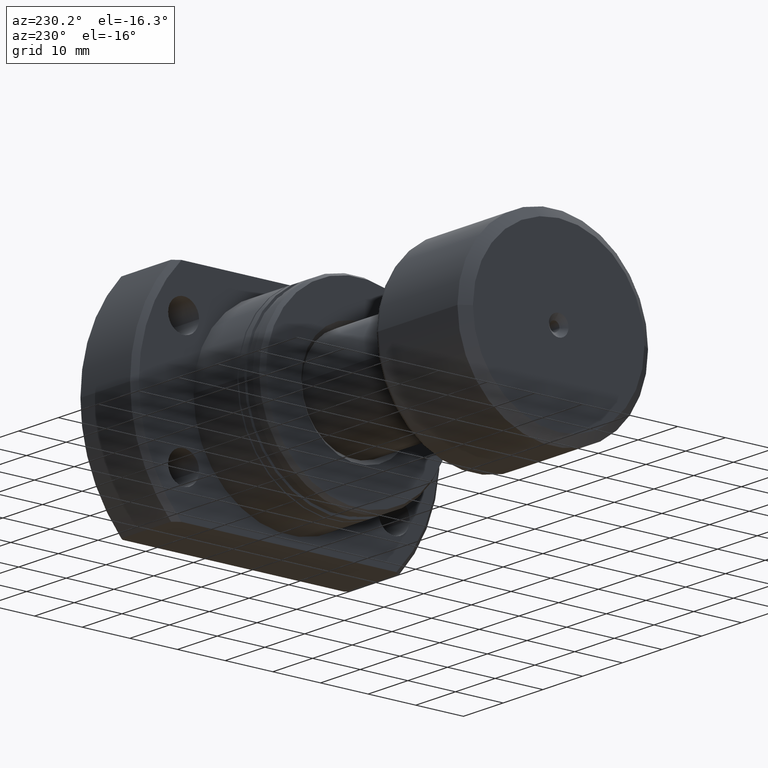
[diagram: clean part render]
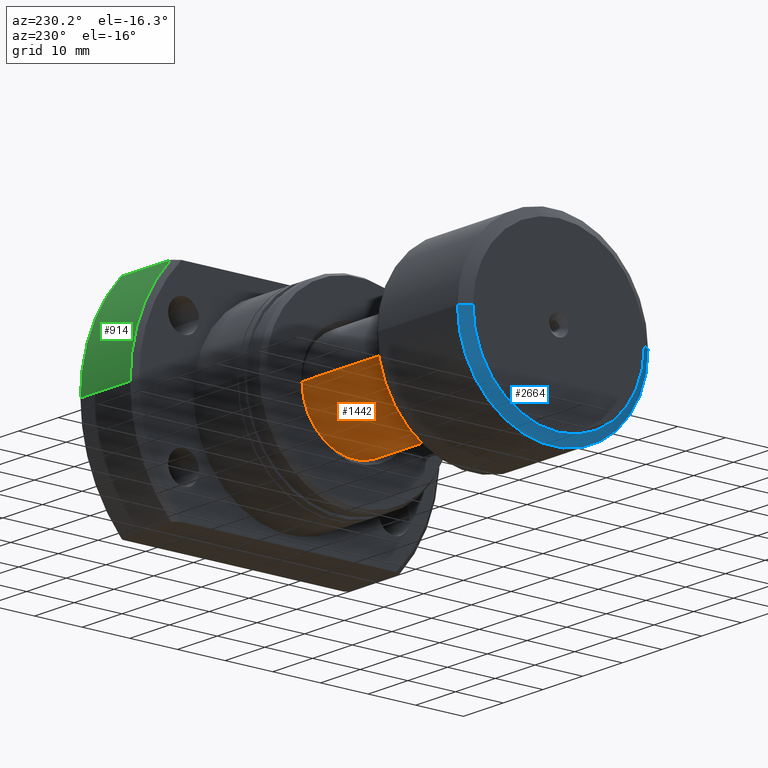
[diagram: same view with three faces highlighted in distinct colors, each labeled with its STEP entity id]
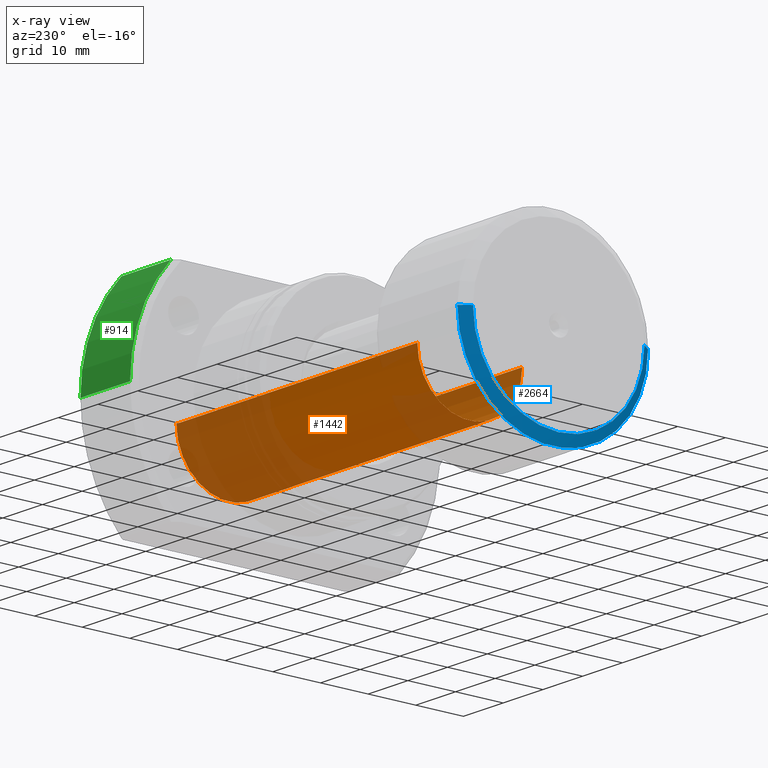
[diagram: x-ray of the same camera — body ghosted, the three highlighted faces saturated]
A machine part, auxiliary view with three faces highlighted in distinct colors.
The next image is the same camera in x-ray (body ghosted, the three faces saturated) — at least one of them is partly hidden behind the body in this view.
Their STEP definitions:

[orange] entity #1442 — the highlighted cylindrical surface (partial cylindrical patch) has radius 11 mm, axis along (-1, -0, -0).
#9 = AXIS2_PLACEMENT_3D ( 'NONE', #52, #2019, #2969 ) ;
#52 = CARTESIAN_POINT ( 'NONE',  ( 83.06675751232377536, 8.884341271647877269E-16, 0.000000000000000000 ) ) ;
#57 = AXIS2_PLACEMENT_3D ( 'NONE', #989, #1975, #2791 ) ;
#156 = ORIENTED_EDGE ( 'NONE', *, *, #3114, .F. ) ;
#464 = DIRECTION ( 'NONE',  ( -1.000000000000000000, -1.069542322069065801E-17, -0.000000000000000000 ) ) ;
#530 = AXIS2_PLACEMENT_3D ( 'NONE', #1832, #1814, #2580 ) ;
#540 = VERTEX_POINT ( 'NONE', #2892 ) ;
#611 = CARTESIAN_POINT ( 'NONE',  ( 22.39999999999999858, 11.00000000000000000, 1.347111479062094124E-15 ) ) ;
#830 = ORIENTED_EDGE ( 'NONE', *, *, #1789, .T. ) ;
#989 = CARTESIAN_POINT ( 'NONE',  ( 22.39999999999999858, 2.395774801434707739E-16, 0.000000000000000000 ) ) ;
#1143 = LINE ( 'NONE', #2129, #3118 ) ;
#1310 = CARTESIAN_POINT ( 'NONE',  ( 22.39999999999999858, -11.00000000000000000, 0.000000000000000000 ) ) ;
#1407 = CIRCLE ( 'NONE', #9, 11.00000000000019007 ) ;
#1442 = ADVANCED_FACE ( 'NONE', ( #3080 ), #1588, .T. ) ;
#1588 = CYLINDRICAL_SURFACE ( 'NONE', #530, 11.00000000000009415 ) ;
#1718 = CIRCLE ( 'NONE', #57, 11.00000000000000000 ) ;
#1789 = EDGE_CURVE ( 'NONE', #3224, #540, #1407, .T. ) ;
#1814 = DIRECTION ( 'NONE',  ( -1.000000000000000000, -1.069542322069065801E-17, -0.000000000000000000 ) ) ;
#1832 = CARTESIAN_POINT ( 'NONE',  ( 0.000000000000000000, 0.000000000000000000, 0.000000000000000000 ) ) ;
#1953 = CARTESIAN_POINT ( 'NONE',  ( -1.176496554275982688E-16, 11.00000000000009415, 1.347111479062100238E-15 ) ) ;
#1975 = DIRECTION ( 'NONE',  ( -1.000000000000000000, -1.069542322069065801E-17, -0.000000000000000000 ) ) ;
#1978 = VERTEX_POINT ( 'NONE', #1310 ) ;
#2006 = CARTESIAN_POINT ( 'NONE',  ( 83.06675751232377536, 11.00000000000019185, 1.347111479062111873E-15 ) ) ;
#2019 = DIRECTION ( 'NONE',  ( -1.000000000000000000, -1.069542322069065801E-17, -0.000000000000000000 ) ) ;
#2064 = LINE ( 'NONE', #1953, #2859 ) ;
#2072 = VERTEX_POINT ( 'NONE', #611 ) ;
#2129 = CARTESIAN_POINT ( 'NONE',  ( 1.176496554275982688E-16, -11.00000000000009415, 0.000000000000000000 ) ) ;
#2158 = EDGE_CURVE ( 'NONE', #540, #1978, #1143, .T. ) ;
#2354 = EDGE_CURVE ( 'NONE', #3224, #2072, #2064, .T. ) ;
#2367 = ORIENTED_EDGE ( 'NONE', *, *, #2354, .F. ) ;
#2580 = DIRECTION ( 'NONE',  ( 1.069542322069065955E-17, -1.000000000000000000, 0.000000000000000000 ) ) ;
#2791 = DIRECTION ( 'NONE',  ( 0.000000000000000000, -1.000000000000000000, 0.000000000000000000 ) ) ;
#2837 = EDGE_LOOP ( 'NONE', ( #2367, #830, #2870, #156 ) ) ;
#2859 = VECTOR ( 'NONE', #3061, 1000.000000000000000 ) ;
#2870 = ORIENTED_EDGE ( 'NONE', *, *, #2158, .T. ) ;
#2892 = CARTESIAN_POINT ( 'NONE',  ( 83.06675751232377536, -11.00000000000018829, 0.000000000000000000 ) ) ;
#2969 = DIRECTION ( 'NONE',  ( 0.000000000000000000, -1.000000000000000000, 0.000000000000000000 ) ) ;
#3061 = DIRECTION ( 'NONE',  ( -1.000000000000000000, -1.069542322069065801E-17, -0.000000000000000000 ) ) ;
#3080 = FACE_OUTER_BOUND ( 'NONE', #2837, .T. ) ;
#3114 = EDGE_CURVE ( 'NONE', #2072, #1978, #1718, .T. ) ;
#3118 = VECTOR ( 'NONE', #464, 1000.000000000000000 ) ;
#3224 = VERTEX_POINT ( 'NONE', #2006 ) ;

[blue] entity #2664 — the highlighted conical surface has half-angle 53.13 deg.
#151 = DIRECTION ( 'NONE',  ( 0.6000000000000005329, -0.7999999999999996003, 9.797174393178821220E-17 ) ) ;
#212 = CONICAL_SURFACE ( 'NONE', #2387, 18.00000000000000355, 0.9272952180016115209 ) ;
#568 = ORIENTED_EDGE ( 'NONE', *, *, #2461, .F. ) ;
#698 = CARTESIAN_POINT ( 'NONE',  ( 2.204364238465235822E-15, -18.00000000000000355, 2.204364238465235822E-15 ) ) ;
#749 = LINE ( 'NONE', #2998, #1609 ) ;
#799 = DIRECTION ( 'NONE',  ( 1.084202172485504434E-17, -1.000000000000000000, 0.000000000000000000 ) ) ;
#866 = ORIENTED_EDGE ( 'NONE', *, *, #2800, .T. ) ;
#882 = EDGE_LOOP ( 'NONE', ( #2844, #568, #3053, #866 ) ) ;
#1050 = VECTOR ( 'NONE', #151, 1000.000000000000000 ) ;
#1059 = VERTEX_POINT ( 'NONE', #2939 ) ;
#1159 = CARTESIAN_POINT ( 'NONE',  ( 2.011846620492804129E-15, 2.151755106128676308E-32, 0.000000000000000000 ) ) ;
#1169 = FACE_OUTER_BOUND ( 'NONE', #882, .T. ) ;
#1224 = CARTESIAN_POINT ( 'NONE',  ( 2.011846620492804129E-15, 2.151755106128676308E-32, 0.000000000000000000 ) ) ;
#1606 = CIRCLE ( 'NONE', #2030, 20.00000000000000000 ) ;
#1609 = VECTOR ( 'NONE', #1731, 1000.000000000000000 ) ;
#1686 = EDGE_CURVE ( 'NONE', #2134, #2988, #1956, .T. ) ;
#1731 = DIRECTION ( 'NONE',  ( 0.6000000000000005329, 0.7999999999999996003, 0.000000000000000000 ) ) ;
#1786 = VERTEX_POINT ( 'NONE', #2773 ) ;
#1856 = EDGE_CURVE ( 'NONE', #1059, #1786, #749, .T. ) ;
#1956 = LINE ( 'NONE', #698, #1050 ) ;
#2029 = CARTESIAN_POINT ( 'NONE',  ( 1.500000000000002442, 1.604313483103601552E-17, 0.000000000000000000 ) ) ;
#2030 = AXIS2_PLACEMENT_3D ( 'NONE', #2029, #3026, #799 ) ;
#2134 = VERTEX_POINT ( 'NONE', #3186 ) ;
#2140 = DIRECTION ( 'NONE',  ( 1.069542322069065647E-17, -1.000000000000000000, 0.000000000000000000 ) ) ;
#2152 = DIRECTION ( 'NONE',  ( 1.000000000000000000, 1.069542322069065801E-17, 0.000000000000000000 ) ) ;
#2285 = AXIS2_PLACEMENT_3D ( 'NONE', #1159, #2890, #2140 ) ;
#2387 = AXIS2_PLACEMENT_3D ( 'NONE', #1224, #2152, #3153 ) ;
#2428 = CARTESIAN_POINT ( 'NONE',  ( 1.500000000000002887, -20.00000000000000000, 2.449293598294706513E-15 ) ) ;
#2461 = EDGE_CURVE ( 'NONE', #1059, #2134, #3011, .T. ) ;
#2664 = ADVANCED_FACE ( 'NONE', ( #1169 ), #212, .T. ) ;
#2773 = CARTESIAN_POINT ( 'NONE',  ( 1.500000000000002442, 20.00000000000000000, 0.000000000000000000 ) ) ;
#2800 = EDGE_CURVE ( 'NONE', #1786, #2988, #1606, .T. ) ;
#2844 = ORIENTED_EDGE ( 'NONE', *, *, #1686, .F. ) ;
#2890 = DIRECTION ( 'NONE',  ( -1.000000000000000000, -1.069542322069065801E-17, -0.000000000000000000 ) ) ;
#2939 = CARTESIAN_POINT ( 'NONE',  ( 1.819329002520372041E-15, 18.00000000000000355, 0.000000000000000000 ) ) ;
#2988 = VERTEX_POINT ( 'NONE', #2428 ) ;
#2998 = CARTESIAN_POINT ( 'NONE',  ( 1.819329002520372041E-15, 18.00000000000000355, 0.000000000000000000 ) ) ;
#3011 = CIRCLE ( 'NONE', #2285, 18.00000000000000355 ) ;
#3026 = DIRECTION ( 'NONE',  ( -1.000000000000000000, -1.069542322069065801E-17, -0.000000000000000000 ) ) ;
#3053 = ORIENTED_EDGE ( 'NONE', *, *, #1856, .T. ) ;
#3153 = DIRECTION ( 'NONE',  ( -1.069542322069065647E-17, 1.000000000000000000, 0.000000000000000000 ) ) ;
#3186 = CARTESIAN_POINT ( 'NONE',  ( 2.204364238465235822E-15, -18.00000000000000355, 2.326828918379971365E-15 ) ) ;

[green] entity #914 — the highlighted cylindrical surface (partial cylindrical patch) has radius 32.5 mm, axis along (1, 0, 0).
#23 = DIRECTION ( 'NONE',  ( 0.000000000000000000, 1.000000000000000000, 0.000000000000000000 ) ) ;
#51 = AXIS2_PLACEMENT_3D ( 'NONE', #1641, #1333, #1401 ) ;
#116 = DIRECTION ( 'NONE',  ( 1.000000000000000000, 2.721437331438560389E-17, -0.000000000000000000 ) ) ;
#185 = CARTESIAN_POINT ( 'NONE',  ( 18.49999999999998934, 23.92174742781163133, 21.99999999999998934 ) ) ;
#796 = EDGE_CURVE ( 'NONE', #2215, #2609, #2013, .T. ) ;
#898 = FACE_OUTER_BOUND ( 'NONE', #2466, .T. ) ;
#914 = ADVANCED_FACE ( 'NONE', ( #898 ), #2835, .T. ) ;
#932 = EDGE_CURVE ( 'NONE', #2968, #941, #2617, .T. ) ;
#941 = VERTEX_POINT ( 'NONE', #1366 ) ;
#1002 = CIRCLE ( 'NONE', #51, 32.49999999999990763 ) ;
#1048 = CARTESIAN_POINT ( 'NONE',  ( -2.498001805406602216E-13, 23.92174742781216423, 21.99999999999998934 ) ) ;
#1057 = CARTESIAN_POINT ( 'NONE',  ( 18.49999999999998934, 5.034659063161333869E-16, 0.000000000000000000 ) ) ;
#1105 = AXIS2_PLACEMENT_3D ( 'NONE', #1057, #2233, #23 ) ;
#1298 = AXIS2_PLACEMENT_3D ( 'NONE', #2141, #116, #3143 ) ;
#1333 = DIRECTION ( 'NONE',  ( 1.000000000000000000, 2.721437331438560389E-17, -0.000000000000000000 ) ) ;
#1366 = CARTESIAN_POINT ( 'NONE',  ( 31.00000000000008171, 32.49999999999990763, 0.000000000000000000 ) ) ;
#1401 = DIRECTION ( 'NONE',  ( 0.000000000000000000, 1.000000000000000000, 0.000000000000000000 ) ) ;
#1409 = EDGE_CURVE ( 'NONE', #941, #2609, #1002, .T. ) ;
#1641 = CARTESIAN_POINT ( 'NONE',  ( 31.00000000000008171, 8.436455727459560039E-16, 0.000000000000000000 ) ) ;
#1711 = VECTOR ( 'NONE', #2880, 1000.000000000000000 ) ;
#1802 = DIRECTION ( 'NONE',  ( 1.000000000000000000, -2.886466111666351885E-14, -0.000000000000000000 ) ) ;
#1816 = EDGE_CURVE ( 'NONE', #2968, #2215, #2714, .T. ) ;
#2013 = LINE ( 'NONE', #1048, #3071 ) ;
#2141 = CARTESIAN_POINT ( 'NONE',  ( 31.50000000000000000, 8.572527594031465301E-16, 0.000000000000000000 ) ) ;
#2162 = ORIENTED_EDGE ( 'NONE', *, *, #932, .F. ) ;
#2203 = CARTESIAN_POINT ( 'NONE',  ( 18.49999999999998934, 32.49999999999990763, 0.000000000000000000 ) ) ;
#2215 = VERTEX_POINT ( 'NONE', #185 ) ;
#2233 = DIRECTION ( 'NONE',  ( 1.000000000000000000, 2.721437331438560389E-17, -0.000000000000000000 ) ) ;
#2466 = EDGE_LOOP ( 'NONE', ( #2162, #2764, #2486, #3052 ) ) ;
#2486 = ORIENTED_EDGE ( 'NONE', *, *, #796, .T. ) ;
#2609 = VERTEX_POINT ( 'NONE', #2975 ) ;
#2617 = LINE ( 'NONE', #2891, #1711 ) ;
#2714 = CIRCLE ( 'NONE', #1105, 32.49999999999990763 ) ;
#2764 = ORIENTED_EDGE ( 'NONE', *, *, #1816, .T. ) ;
#2835 = CYLINDRICAL_SURFACE ( 'NONE', #1298, 32.49999999999990763 ) ;
#2880 = DIRECTION ( 'NONE',  ( 1.000000000000000000, 2.721437331438560389E-17, -0.000000000000000000 ) ) ;
#2891 = CARTESIAN_POINT ( 'NONE',  ( 31.50000000000000000, 32.49999999999990763, 0.000000000000000000 ) ) ;
#2968 = VERTEX_POINT ( 'NONE', #2203 ) ;
#2975 = CARTESIAN_POINT ( 'NONE',  ( 31.00000000000007461, 23.92174742781126895, 21.99999999999998934 ) ) ;
#3052 = ORIENTED_EDGE ( 'NONE', *, *, #1409, .F. ) ;
#3071 = VECTOR ( 'NONE', #1802, 1000.000000000000000 ) ;
#3143 = DIRECTION ( 'NONE',  ( 0.000000000000000000, 1.000000000000000000, 0.000000000000000000 ) ) ;